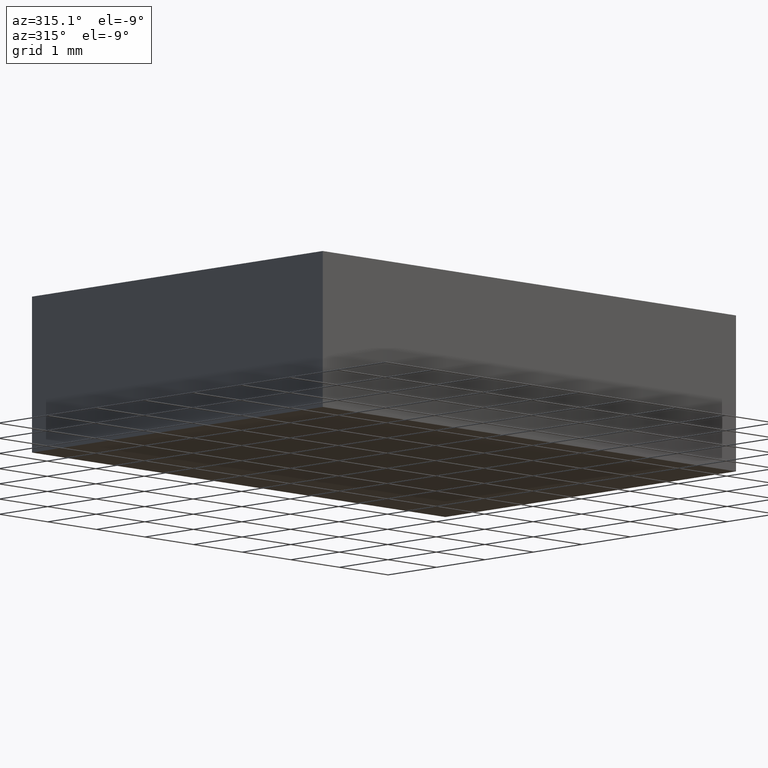
[diagram: clean part render]
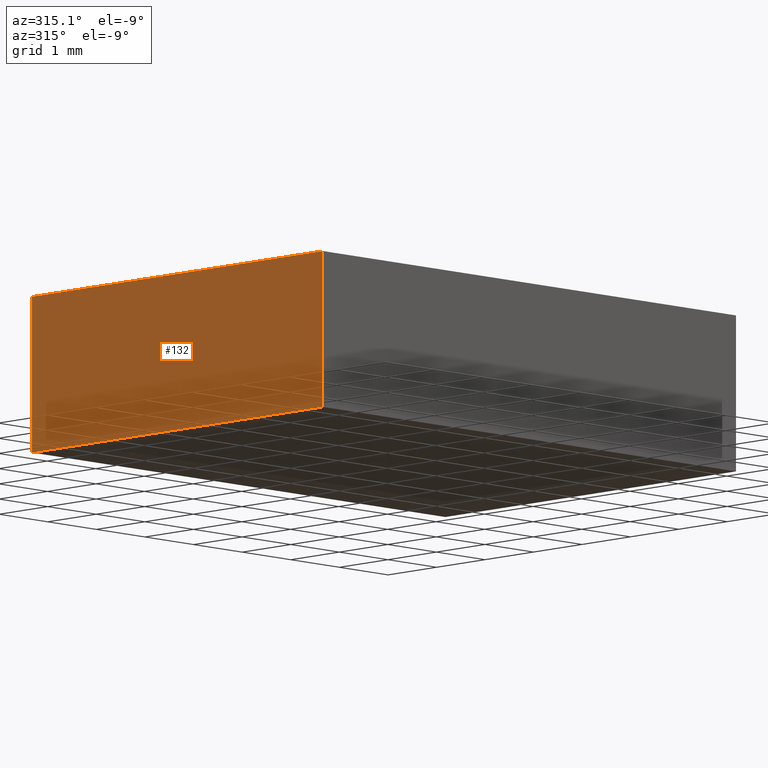
[diagram: same view with one face highlighted and labeled with its STEP entity id]
A machine part, auxiliary view. The second image highlights one B-rep face of the part: STEP entity #132.
In plain terms, the highlighted planar face has unit normal (1, 0, -0).
Its self-contained STEP definition (entity closure, byte-faithful):
#1 = CARTESIAN_POINT ( 'NONE',  ( 15.99958715517701600, 15.31264836690531800, 2.299999999999999800 ) ) ;
#2 = DIRECTION ( 'NONE',  ( -0.0000000000000000000, -0.0000000000000000000, -1.000000000000000000 ) ) ;
#5 = ORIENTED_EDGE ( 'NONE', *, *, #134, .F. ) ;
#11 = VECTOR ( 'NONE', #120, 1000.000000000000000 ) ;
#26 = CARTESIAN_POINT ( 'NONE',  ( 15.99958715517701600, 15.31264836690531800, 0.0000000000000000000 ) ) ;
#27 = DIRECTION ( 'NONE',  ( 1.000000000000000000, 5.782411586589360600E-016, -0.0000000000000000000 ) ) ;
#28 = ORIENTED_EDGE ( 'NONE', *, *, #103, .T. ) ;
#34 = CARTESIAN_POINT ( 'NONE',  ( 15.99958715517702000, 9.312648366905321500, 2.299999999999999800 ) ) ;
#39 = LINE ( 'NONE', #137, #106 ) ;
#41 = EDGE_CURVE ( 'NONE', #117, #68, #39, .T. ) ;
#42 = LINE ( 'NONE', #111, #102 ) ;
#43 = LINE ( 'NONE', #143, #167 ) ;
#45 = CARTESIAN_POINT ( 'NONE',  ( 15.99958715517701600, 15.31264836690531800, 2.299999999999999800 ) ) ;
#47 = DIRECTION ( 'NONE',  ( 5.782411586589360600E-016, -1.000000000000000000, 0.0000000000000000000 ) ) ;
#54 = LINE ( 'NONE', #157, #11 ) ;
#68 = VERTEX_POINT ( 'NONE', #26 ) ;
#82 = ORIENTED_EDGE ( 'NONE', *, *, #201, .F. ) ;
#89 = EDGE_LOOP ( 'NONE', ( #28, #82, #5, #99 ) ) ;
#91 = DIRECTION ( 'NONE',  ( -0.0000000000000000000, -0.0000000000000000000, -1.000000000000000000 ) ) ;
#99 = ORIENTED_EDGE ( 'NONE', *, *, #41, .T. ) ;
#100 = VERTEX_POINT ( 'NONE', #34 ) ;
#102 = VECTOR ( 'NONE', #2, 1000.000000000000000 ) ;
#103 = EDGE_CURVE ( 'NONE', #68, #150, #43, .T. ) ;
#106 = VECTOR ( 'NONE', #91, 1000.000000000000000 ) ;
#111 = CARTESIAN_POINT ( 'NONE',  ( 15.99958715517702000, 9.312648366905321500, 2.299999999999999800 ) ) ;
#117 = VERTEX_POINT ( 'NONE', #1 ) ;
#120 = DIRECTION ( 'NONE',  ( 5.782411586589360600E-016, -1.000000000000000000, 0.0000000000000000000 ) ) ;
#132 = ADVANCED_FACE ( 'NONE', ( #176 ), #141, .F. ) ;
#134 = EDGE_CURVE ( 'NONE', #117, #100, #54, .T. ) ;
#137 = CARTESIAN_POINT ( 'NONE',  ( 15.99958715517701600, 15.31264836690531800, 2.299999999999999800 ) ) ;
#141 = PLANE ( 'NONE',  #166 ) ;
#142 = DIRECTION ( 'NONE',  ( -5.782411586589360600E-016, 1.000000000000000000, 0.0000000000000000000 ) ) ;
#143 = CARTESIAN_POINT ( 'NONE',  ( 15.99958715517701600, 15.31264836690531800, 0.0000000000000000000 ) ) ;
#150 = VERTEX_POINT ( 'NONE', #181 ) ;
#157 = CARTESIAN_POINT ( 'NONE',  ( 15.99958715517701600, 15.31264836690531800, 2.299999999999999800 ) ) ;
#166 = AXIS2_PLACEMENT_3D ( 'NONE', #45, #27, #142 ) ;
#167 = VECTOR ( 'NONE', #47, 1000.000000000000000 ) ;
#176 = FACE_OUTER_BOUND ( 'NONE', #89, .T. ) ;
#181 = CARTESIAN_POINT ( 'NONE',  ( 15.99958715517702000, 9.312648366905321500, 0.0000000000000000000 ) ) ;
#201 = EDGE_CURVE ( 'NONE', #100, #150, #42, .T. ) ;